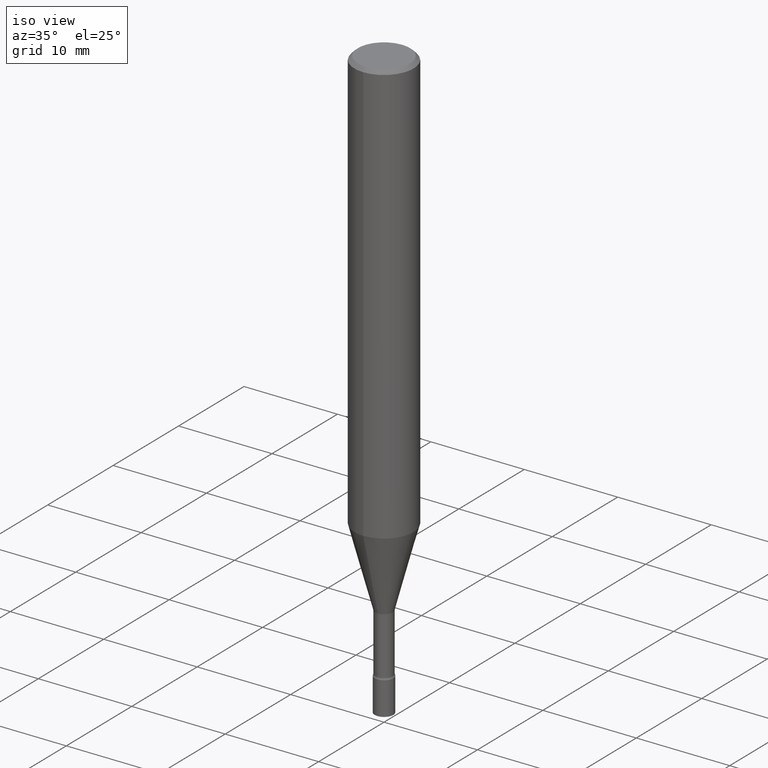
[diagram: clean part render]
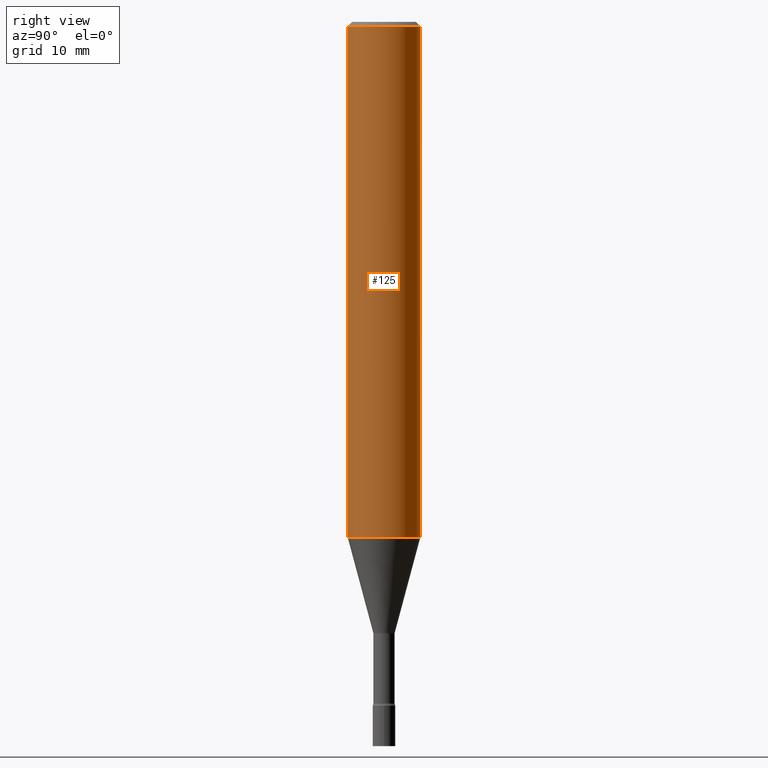
[diagram: tour spotlight — one face highlighted and labeled with its STEP entity id]
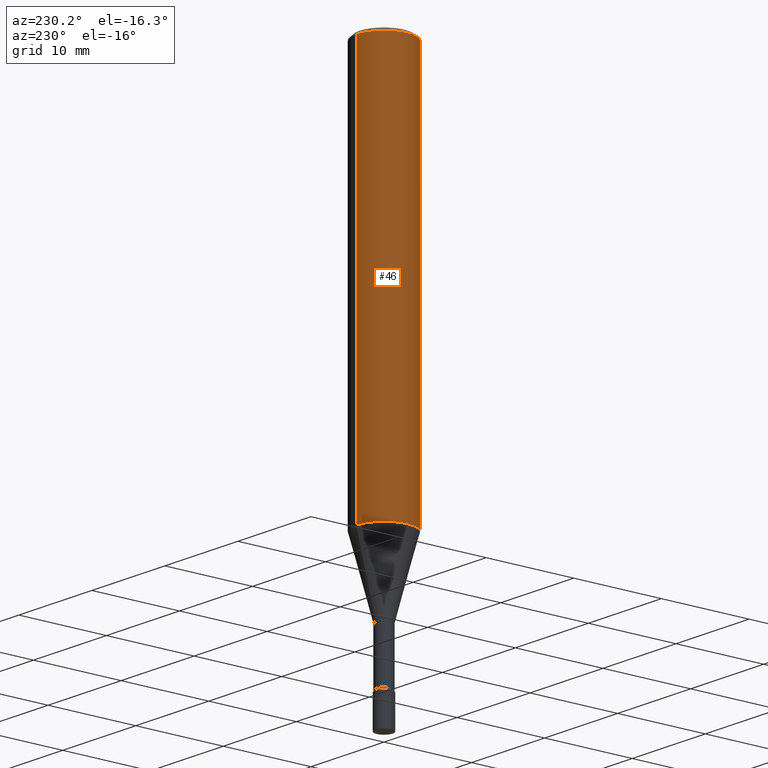
[diagram: tour spotlight — one face highlighted and labeled with its STEP entity id]
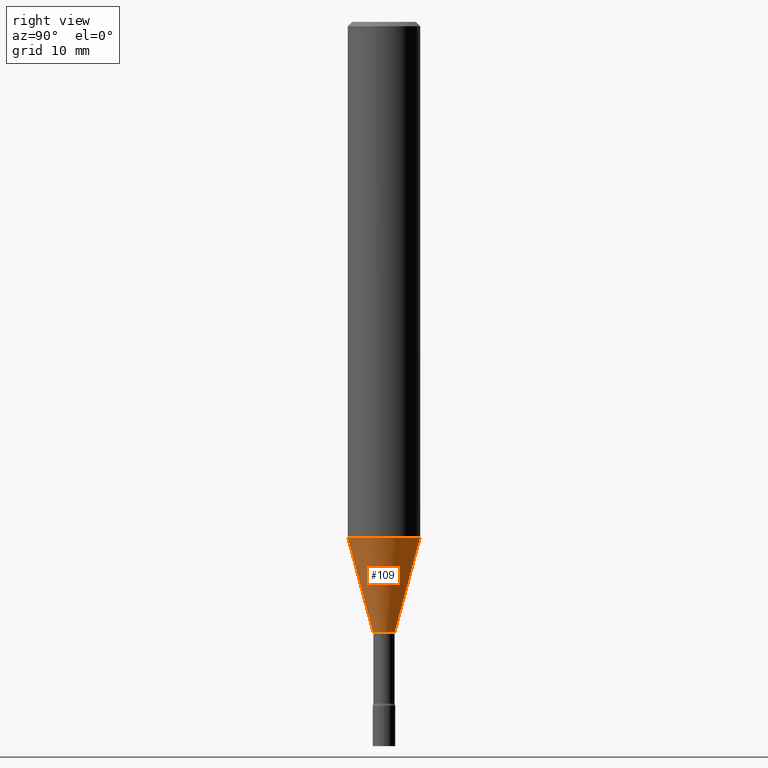
[diagram: tour spotlight — one face highlighted and labeled with its STEP entity id]
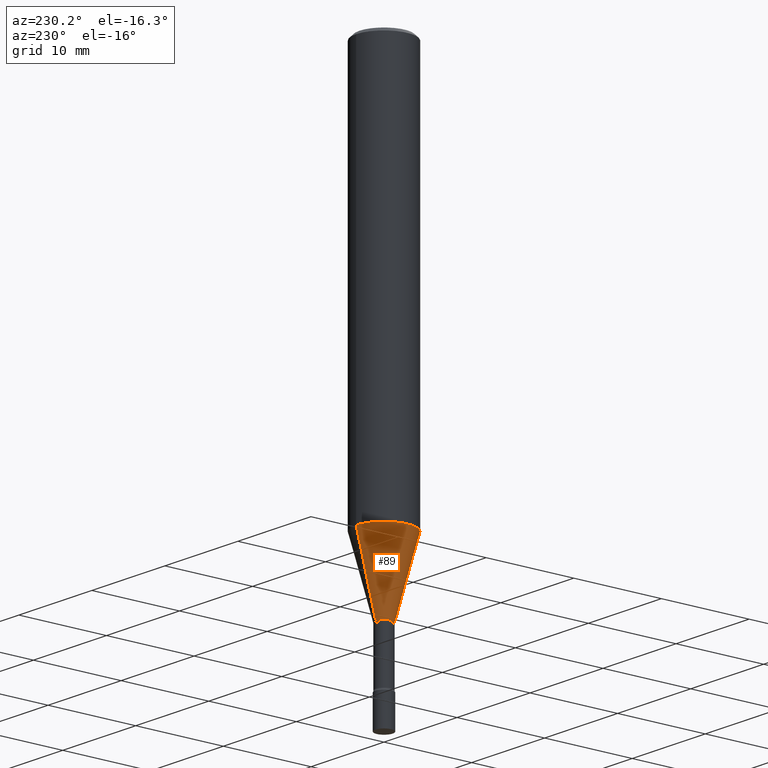
[diagram: tour spotlight — one face highlighted and labeled with its STEP entity id]
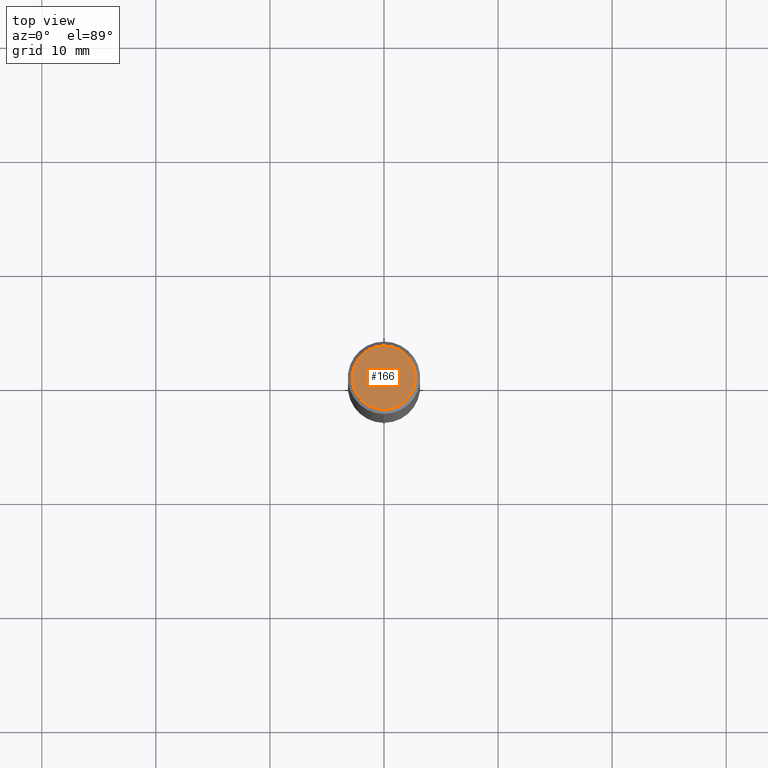
[diagram: tour spotlight — one face highlighted and labeled with its STEP entity id]
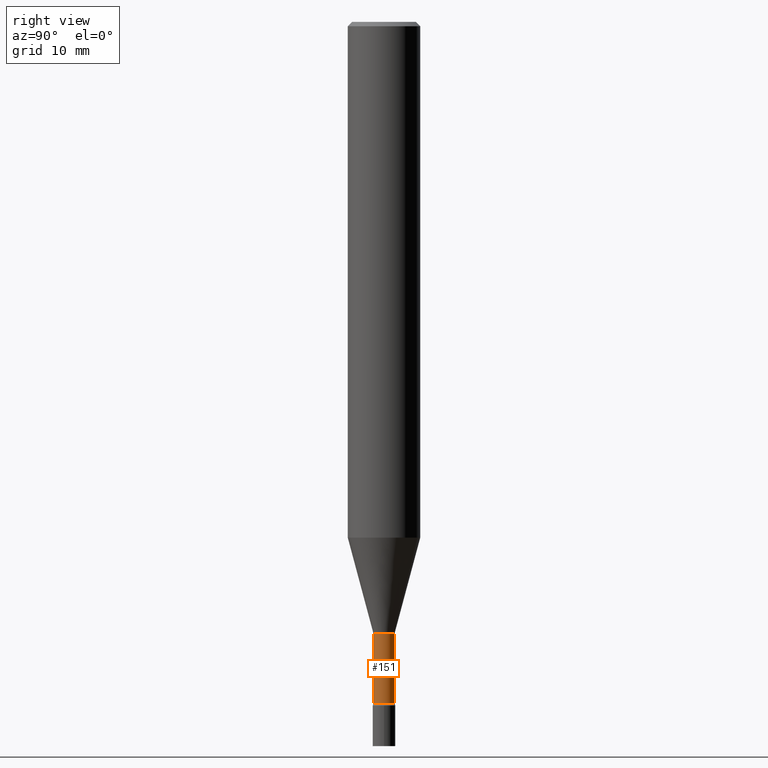
[diagram: tour spotlight — one face highlighted and labeled with its STEP entity id]
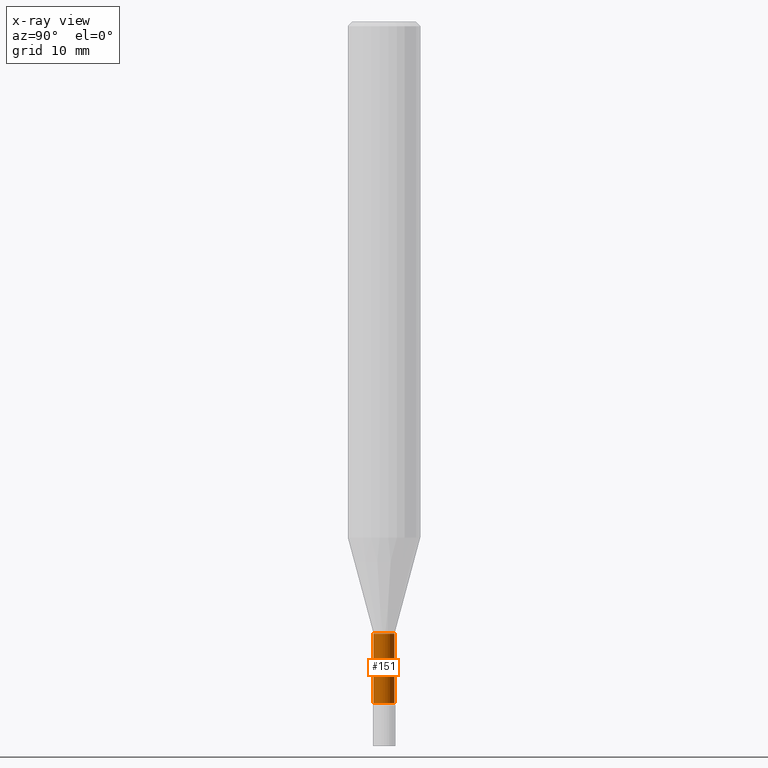
[diagram: x-ray of the same camera — body ghosted, this tour face saturated]
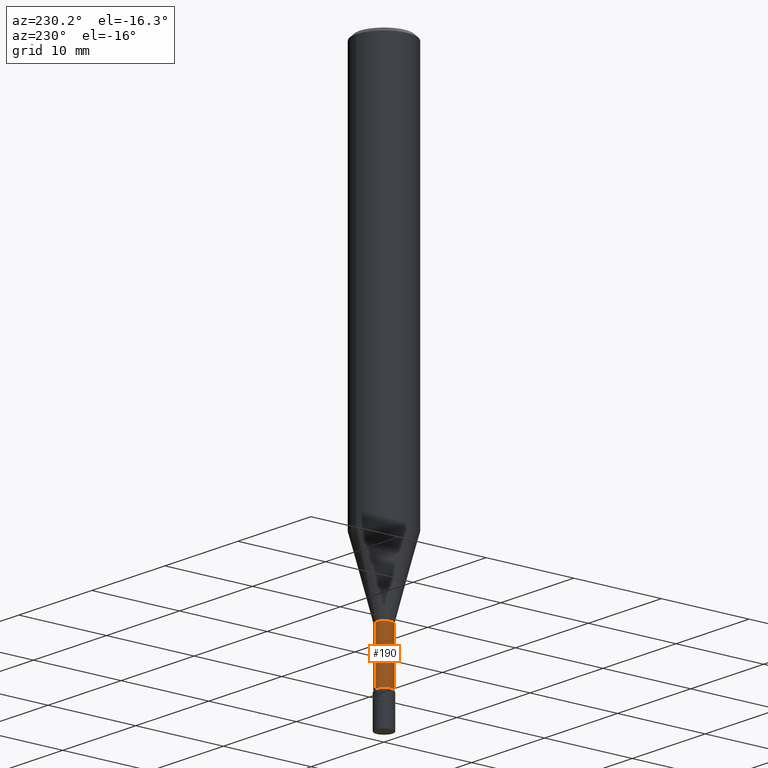
[diagram: tour spotlight — one face highlighted and labeled with its STEP entity id]
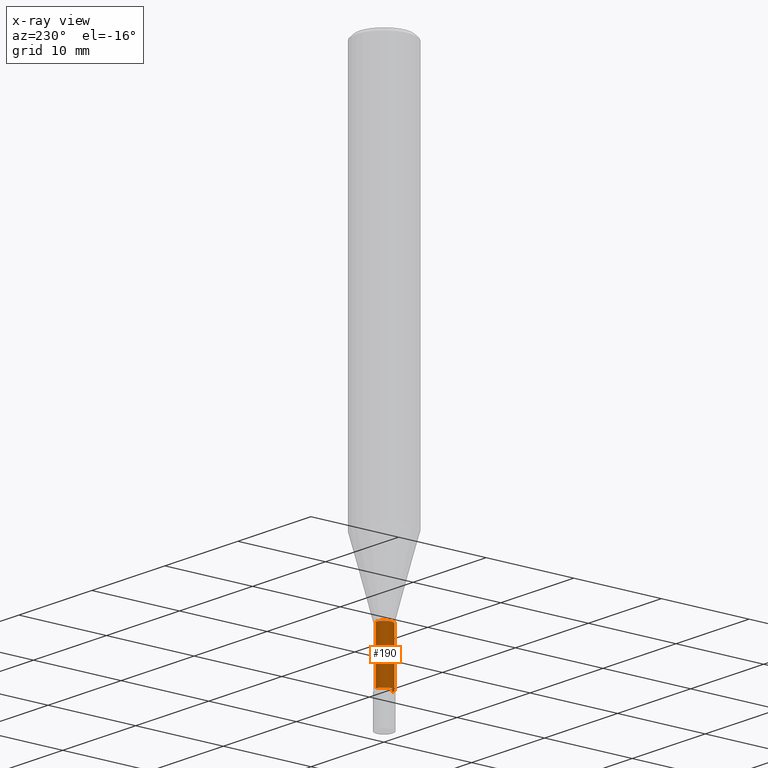
[diagram: x-ray of the same camera — body ghosted, this tour face saturated]
A machine part: a face-by-face anatomy tour. The part has 18 B-rep faces; the first image is the clean iso view, then the 7 largest visible faces are spotlighted one at a time (largest first), each with its STEP entity span.

Face 1 — right view, entity #125. In plain terms, the highlighted cylindrical surface (edge-blend (fillet) strip) has radius 3.175 mm, axis along (-0, 0, 1).
Definition (entity closure, byte-faithful):
#8 = AXIS2_PLACEMENT_3D ( 'NONE', #391, #24, #192 ) ;
#24 = DIRECTION ( 'NONE',  ( -2.445349781310831056E-29, 3.491651789237626205E-15, 1.000000000000000000 ) ) ;
#34 = CARTESIAN_POINT ( 'NONE',  ( 4.353847260578623732E-29, -6.216746043307386729E-15, -1.780459913691669227 ) ) ;
#61 = FACE_OUTER_BOUND ( 'NONE', #317, .T. ) ;
#100 = VERTEX_POINT ( 'NONE', #135 ) ;
#110 = LINE ( 'NONE', #480, #308 ) ;
#125 = ADVANCED_FACE ( 'NONE', ( #61 ), #433, .T. ) ;
#130 = AXIS2_PLACEMENT_3D ( 'NONE', #325, #194, #357 ) ;
#132 = VERTEX_POINT ( 'NONE', #353 ) ;
#135 = CARTESIAN_POINT ( 'NONE',  ( 8.881784197001688169E-16, 0.1249999999999999306, -0.01500000000000045047 ) ) ;
#145 = ORIENTED_EDGE ( 'NONE', *, *, #440, .F. ) ;
#152 = ORIENTED_EDGE ( 'NONE', *, *, #250, .F. ) ;
#165 = DIRECTION ( 'NONE',  ( -2.445349781310830776E-29, 3.491651789237625811E-15, 1.000000000000000000 ) ) ;
#181 = VERTEX_POINT ( 'NONE', #490 ) ;
#192 = DIRECTION ( 'NONE',  ( -6.982962677686265922E-15, -1.000000000000000000, 3.491651789237626205E-15 ) ) ;
#194 = DIRECTION ( 'NONE',  ( -2.445349781310831056E-29, 3.491651789237626205E-15, 1.000000000000000000 ) ) ;
#200 = DIRECTION ( 'NONE',  ( -6.982962677686265922E-15, -1.000000000000000000, 4.370956789862821150E-15 ) ) ;
#250 = EDGE_CURVE ( 'NONE', #324, #100, #252, .T. ) ;
#252 = CIRCLE ( 'NONE', #130, 0.1250000000000000000 ) ;
#268 = EDGE_CURVE ( 'NONE', #132, #100, #110, .T. ) ;
#280 = AXIS2_PLACEMENT_3D ( 'NONE', #34, #435, #200 ) ;
#308 = VECTOR ( 'NONE', #165, 39.37007874015748143 ) ;
#317 = EDGE_LOOP ( 'NONE', ( #499, #423, #152, #145 ) ) ;
#324 = VERTEX_POINT ( 'NONE', #367 ) ;
#325 = CARTESIAN_POINT ( 'NONE',  ( 3.668024671966249089E-31, -5.237477683856444140E-17, -0.01500000000000001332 ) ) ;
#334 = CARTESIAN_POINT ( 'NONE',  ( -8.728703347107832402E-16, -0.1250000000000000000, 4.364564736547032757E-16 ) ) ;
#353 = CARTESIAN_POINT ( 'NONE',  ( 8.881784197001682253E-16, 0.1249999999999937550, -1.780459913691669671 ) ) ;
#357 = DIRECTION ( 'NONE',  ( -6.982962677686265922E-15, -1.000000000000000000, 3.500180241882337261E-15 ) ) ;
#367 = CARTESIAN_POINT ( 'NONE',  ( -8.728703347107828458E-16, -0.1250000000000000555, -0.01499999999999957617 ) ) ;
#370 = LINE ( 'NONE', #334, #412 ) ;
#373 = EDGE_CURVE ( 'NONE', #181, #132, #458, .T. ) ;
#391 = CARTESIAN_POINT ( 'NONE',  ( 0.000000000000000000, 0.000000000000000000, 0.000000000000000000 ) ) ;
#412 = VECTOR ( 'NONE', #451, 39.37007874015748143 ) ;
#423 = ORIENTED_EDGE ( 'NONE', *, *, #268, .T. ) ;
#433 = CYLINDRICAL_SURFACE ( 'NONE', #8, 0.1250000000000000000 ) ;
#435 = DIRECTION ( 'NONE',  ( -2.445349781310831056E-29, 3.491651789237626205E-15, 1.000000000000000000 ) ) ;
#440 = EDGE_CURVE ( 'NONE', #181, #324, #370, .T. ) ;
#451 = DIRECTION ( 'NONE',  ( -2.445349781310830776E-29, 3.491651789237625811E-15, 1.000000000000000000 ) ) ;
#458 = CIRCLE ( 'NONE', #280, 0.1250000000000000000 ) ;
#480 = CARTESIAN_POINT ( 'NONE',  ( 8.881784197001251337E-16, 0.1250000000000000000, -4.364564736547032757E-16 ) ) ;
#490 = CARTESIAN_POINT ( 'NONE',  ( -8.728703347107397543E-16, -0.1250000000000062450, -1.780459913691668561 ) ) ;
#499 = ORIENTED_EDGE ( 'NONE', *, *, #373, .T. ) ;

Face 2 — auxiliary view, entity #46. In plain terms, the highlighted cylindrical surface (edge-blend (fillet) strip) has radius 3.175 mm, axis along (-0, 0, 1).
Definition (entity closure, byte-faithful):
#2 = ORIENTED_EDGE ( 'NONE', *, *, #440, .T. ) ;
#4 = CIRCLE ( 'NONE', #475, 0.1250000000000000000 ) ;
#7 = FACE_OUTER_BOUND ( 'NONE', #136, .T. ) ;
#46 = ADVANCED_FACE ( 'NONE', ( #7 ), #214, .T. ) ;
#100 = VERTEX_POINT ( 'NONE', #135 ) ;
#103 = DIRECTION ( 'NONE',  ( -6.982962677686265922E-15, -1.000000000000000000, 3.491651789237626205E-15 ) ) ;
#110 = LINE ( 'NONE', #480, #308 ) ;
#117 = DIRECTION ( 'NONE',  ( -6.982962677686265922E-15, -1.000000000000000000, 4.370956789862821150E-15 ) ) ;
#132 = VERTEX_POINT ( 'NONE', #353 ) ;
#135 = CARTESIAN_POINT ( 'NONE',  ( 8.881784197001688169E-16, 0.1249999999999999306, -0.01500000000000045047 ) ) ;
#136 = EDGE_LOOP ( 'NONE', ( #269, #176, #2, #302 ) ) ;
#154 = DIRECTION ( 'NONE',  ( -6.982962677686265922E-15, -1.000000000000000000, 3.500180241882337261E-15 ) ) ;
#164 = DIRECTION ( 'NONE',  ( -2.445349781310831056E-29, 3.491651789237626205E-15, 1.000000000000000000 ) ) ;
#165 = DIRECTION ( 'NONE',  ( -2.445349781310830776E-29, 3.491651789237625811E-15, 1.000000000000000000 ) ) ;
#176 = ORIENTED_EDGE ( 'NONE', *, *, #359, .T. ) ;
#181 = VERTEX_POINT ( 'NONE', #490 ) ;
#214 = CYLINDRICAL_SURFACE ( 'NONE', #243, 0.1250000000000000000 ) ;
#236 = DIRECTION ( 'NONE',  ( -2.445349781310831056E-29, 3.491651789237626205E-15, 1.000000000000000000 ) ) ;
#243 = AXIS2_PLACEMENT_3D ( 'NONE', #381, #341, #103 ) ;
#244 = CIRCLE ( 'NONE', #491, 0.1250000000000000000 ) ;
#258 = EDGE_CURVE ( 'NONE', #100, #324, #4, .T. ) ;
#268 = EDGE_CURVE ( 'NONE', #132, #100, #110, .T. ) ;
#269 = ORIENTED_EDGE ( 'NONE', *, *, #268, .F. ) ;
#302 = ORIENTED_EDGE ( 'NONE', *, *, #258, .F. ) ;
#308 = VECTOR ( 'NONE', #165, 39.37007874015748143 ) ;
#324 = VERTEX_POINT ( 'NONE', #367 ) ;
#334 = CARTESIAN_POINT ( 'NONE',  ( -8.728703347107832402E-16, -0.1250000000000000000, 4.364564736547032757E-16 ) ) ;
#341 = DIRECTION ( 'NONE',  ( -2.445349781310831056E-29, 3.491651789237626205E-15, 1.000000000000000000 ) ) ;
#353 = CARTESIAN_POINT ( 'NONE',  ( 8.881784197001682253E-16, 0.1249999999999937550, -1.780459913691669671 ) ) ;
#359 = EDGE_CURVE ( 'NONE', #132, #181, #244, .T. ) ;
#367 = CARTESIAN_POINT ( 'NONE',  ( -8.728703347107828458E-16, -0.1250000000000000555, -0.01499999999999957617 ) ) ;
#370 = LINE ( 'NONE', #334, #412 ) ;
#381 = CARTESIAN_POINT ( 'NONE',  ( 0.000000000000000000, 0.000000000000000000, 0.000000000000000000 ) ) ;
#407 = CARTESIAN_POINT ( 'NONE',  ( 4.353847260578623732E-29, -6.216746043307386729E-15, -1.780459913691669227 ) ) ;
#412 = VECTOR ( 'NONE', #451, 39.37007874015748143 ) ;
#440 = EDGE_CURVE ( 'NONE', #181, #324, #370, .T. ) ;
#451 = DIRECTION ( 'NONE',  ( -2.445349781310830776E-29, 3.491651789237625811E-15, 1.000000000000000000 ) ) ;
#475 = AXIS2_PLACEMENT_3D ( 'NONE', #512, #164, #154 ) ;
#480 = CARTESIAN_POINT ( 'NONE',  ( 8.881784197001251337E-16, 0.1250000000000000000, -4.364564736547032757E-16 ) ) ;
#490 = CARTESIAN_POINT ( 'NONE',  ( -8.728703347107397543E-16, -0.1250000000000062450, -1.780459913691668561 ) ) ;
#491 = AXIS2_PLACEMENT_3D ( 'NONE', #407, #236, #117 ) ;
#512 = CARTESIAN_POINT ( 'NONE',  ( 3.668024671966249089E-31, -5.237477683856444140E-17, -0.01500000000000001332 ) ) ;

Face 3 — right view, entity #109. In plain terms, the highlighted conical surface has half-angle 15 deg.
Definition (entity closure, byte-faithful):
#34 = CARTESIAN_POINT ( 'NONE',  ( 4.353847260578623732E-29, -6.216746043307386729E-15, -1.780459913691669227 ) ) ;
#42 = LINE ( 'NONE', #290, #318 ) ;
#60 = VECTOR ( 'NONE', #352, 39.37007874015748854 ) ;
#62 = DIRECTION ( 'NONE',  ( -6.982962677686265922E-15, -1.000000000000000000, 0.000000000000000000 ) ) ;
#64 = LINE ( 'NONE', #483, #60 ) ;
#75 = AXIS2_PLACEMENT_3D ( 'NONE', #429, #314, #62 ) ;
#88 = CARTESIAN_POINT ( 'NONE',  ( 5.155023538228511633E-29, -7.360724955743956693E-15, -2.108092501787273143 ) ) ;
#92 = VERTEX_POINT ( 'NONE', #267 ) ;
#108 = ORIENTED_EDGE ( 'NONE', *, *, #246, .F. ) ;
#109 = ADVANCED_FACE ( 'NONE', ( #449 ), #234, .T. ) ;
#132 = VERTEX_POINT ( 'NONE', #353 ) ;
#171 = VERTEX_POINT ( 'NONE', #478 ) ;
#181 = VERTEX_POINT ( 'NONE', #490 ) ;
#184 = CIRCLE ( 'NONE', #75, 0.03721111260566398182 ) ;
#200 = DIRECTION ( 'NONE',  ( -6.982962677686265922E-15, -1.000000000000000000, 4.370956789862821150E-15 ) ) ;
#202 = EDGE_CURVE ( 'NONE', #92, #171, #184, .T. ) ;
#232 = DIRECTION ( 'NONE',  ( -6.982962677686265922E-15, -1.000000000000000000, 0.000000000000000000 ) ) ;
#234 = CONICAL_SURFACE ( 'NONE', #371, 0.03721111260566398182, 0.2617993877991500740 ) ;
#246 = EDGE_CURVE ( 'NONE', #92, #181, #64, .T. ) ;
#255 = DIRECTION ( 'NONE',  ( -2.445349781310831056E-29, 3.491651789237626205E-15, 1.000000000000000000 ) ) ;
#267 = CARTESIAN_POINT ( 'NONE',  ( -2.598438105204809611E-16, -0.03721111260567134399, -2.108092501787273143 ) ) ;
#280 = AXIS2_PLACEMENT_3D ( 'NONE', #34, #435, #200 ) ;
#290 = CARTESIAN_POINT ( 'NONE',  ( 2.644008575151078799E-16, 0.03721111260565662660, -2.108092501787273143 ) ) ;
#298 = ORIENTED_EDGE ( 'NONE', *, *, #373, .F. ) ;
#314 = DIRECTION ( 'NONE',  ( -2.445349781310831056E-29, 3.491651789237626205E-15, 1.000000000000000000 ) ) ;
#318 = VECTOR ( 'NONE', #444, 39.37007874015748854 ) ;
#351 = ORIENTED_EDGE ( 'NONE', *, *, #202, .T. ) ;
#352 = DIRECTION ( 'NONE',  ( -1.807323732225328562E-15, -0.2588190451025179639, 0.9659258262890690894 ) ) ;
#353 = CARTESIAN_POINT ( 'NONE',  ( 8.881784197001682253E-16, 0.1249999999999937550, -1.780459913691669671 ) ) ;
#371 = AXIS2_PLACEMENT_3D ( 'NONE', #88, #255, #232 ) ;
#373 = EDGE_CURVE ( 'NONE', #181, #132, #458, .T. ) ;
#429 = CARTESIAN_POINT ( 'NONE',  ( 5.155023538228511633E-29, -7.360724955743956693E-15, -2.108092501787273143 ) ) ;
#435 = DIRECTION ( 'NONE',  ( -2.445349781310831056E-29, 3.491651789237626205E-15, 1.000000000000000000 ) ) ;
#444 = DIRECTION ( 'NONE',  ( 1.839019923739598738E-15, 0.2588190451025247363, 0.9659258262890673130 ) ) ;
#449 = FACE_OUTER_BOUND ( 'NONE', #452, .T. ) ;
#452 = EDGE_LOOP ( 'NONE', ( #351, #493, #298, #108 ) ) ;
#458 = CIRCLE ( 'NONE', #280, 0.1250000000000000000 ) ;
#478 = CARTESIAN_POINT ( 'NONE',  ( 5.762896386076385210E-16, 0.03721111260565662660, -2.108092501787273143 ) ) ;
#483 = CARTESIAN_POINT ( 'NONE',  ( -2.598438105204809611E-16, -0.03721111260567134399, -2.108092501787273143 ) ) ;
#490 = CARTESIAN_POINT ( 'NONE',  ( -8.728703347107397543E-16, -0.1250000000000062450, -1.780459913691668561 ) ) ;
#493 = ORIENTED_EDGE ( 'NONE', *, *, #520, .T. ) ;
#520 = EDGE_CURVE ( 'NONE', #171, #132, #42, .T. ) ;

Face 4 — auxiliary view, entity #89. In plain terms, the highlighted conical surface has half-angle 15 deg.
Definition (entity closure, byte-faithful):
#18 = EDGE_CURVE ( 'NONE', #171, #92, #329, .T. ) ;
#19 = CONICAL_SURFACE ( 'NONE', #49, 0.03721111260566398182, 0.2617993877991500740 ) ;
#31 = EDGE_LOOP ( 'NONE', ( #378, #494, #344, #119 ) ) ;
#42 = LINE ( 'NONE', #290, #318 ) ;
#48 = DIRECTION ( 'NONE',  ( -2.445349781310831056E-29, 3.491651789237626205E-15, 1.000000000000000000 ) ) ;
#49 = AXIS2_PLACEMENT_3D ( 'NONE', #496, #48, #502 ) ;
#60 = VECTOR ( 'NONE', #352, 39.37007874015748854 ) ;
#64 = LINE ( 'NONE', #483, #60 ) ;
#89 = ADVANCED_FACE ( 'NONE', ( #384 ), #19, .T. ) ;
#92 = VERTEX_POINT ( 'NONE', #267 ) ;
#117 = DIRECTION ( 'NONE',  ( -6.982962677686265922E-15, -1.000000000000000000, 4.370956789862821150E-15 ) ) ;
#119 = ORIENTED_EDGE ( 'NONE', *, *, #359, .F. ) ;
#124 = DIRECTION ( 'NONE',  ( -6.982962677686265922E-15, -1.000000000000000000, 0.000000000000000000 ) ) ;
#132 = VERTEX_POINT ( 'NONE', #353 ) ;
#141 = AXIS2_PLACEMENT_3D ( 'NONE', #511, #294, #124 ) ;
#171 = VERTEX_POINT ( 'NONE', #478 ) ;
#181 = VERTEX_POINT ( 'NONE', #490 ) ;
#236 = DIRECTION ( 'NONE',  ( -2.445349781310831056E-29, 3.491651789237626205E-15, 1.000000000000000000 ) ) ;
#244 = CIRCLE ( 'NONE', #491, 0.1250000000000000000 ) ;
#246 = EDGE_CURVE ( 'NONE', #92, #181, #64, .T. ) ;
#267 = CARTESIAN_POINT ( 'NONE',  ( -2.598438105204809611E-16, -0.03721111260567134399, -2.108092501787273143 ) ) ;
#290 = CARTESIAN_POINT ( 'NONE',  ( 2.644008575151078799E-16, 0.03721111260565662660, -2.108092501787273143 ) ) ;
#294 = DIRECTION ( 'NONE',  ( -2.445349781310831056E-29, 3.491651789237626205E-15, 1.000000000000000000 ) ) ;
#318 = VECTOR ( 'NONE', #444, 39.37007874015748854 ) ;
#329 = CIRCLE ( 'NONE', #141, 0.03721111260566398182 ) ;
#344 = ORIENTED_EDGE ( 'NONE', *, *, #246, .T. ) ;
#352 = DIRECTION ( 'NONE',  ( -1.807323732225328562E-15, -0.2588190451025179639, 0.9659258262890690894 ) ) ;
#353 = CARTESIAN_POINT ( 'NONE',  ( 8.881784197001682253E-16, 0.1249999999999937550, -1.780459913691669671 ) ) ;
#359 = EDGE_CURVE ( 'NONE', #132, #181, #244, .T. ) ;
#378 = ORIENTED_EDGE ( 'NONE', *, *, #520, .F. ) ;
#384 = FACE_OUTER_BOUND ( 'NONE', #31, .T. ) ;
#407 = CARTESIAN_POINT ( 'NONE',  ( 4.353847260578623732E-29, -6.216746043307386729E-15, -1.780459913691669227 ) ) ;
#444 = DIRECTION ( 'NONE',  ( 1.839019923739598738E-15, 0.2588190451025247363, 0.9659258262890673130 ) ) ;
#478 = CARTESIAN_POINT ( 'NONE',  ( 5.762896386076385210E-16, 0.03721111260565662660, -2.108092501787273143 ) ) ;
#483 = CARTESIAN_POINT ( 'NONE',  ( -2.598438105204809611E-16, -0.03721111260567134399, -2.108092501787273143 ) ) ;
#490 = CARTESIAN_POINT ( 'NONE',  ( -8.728703347107397543E-16, -0.1250000000000062450, -1.780459913691668561 ) ) ;
#491 = AXIS2_PLACEMENT_3D ( 'NONE', #407, #236, #117 ) ;
#494 = ORIENTED_EDGE ( 'NONE', *, *, #18, .T. ) ;
#496 = CARTESIAN_POINT ( 'NONE',  ( 5.155023538228511633E-29, -7.360724955743956693E-15, -2.108092501787273143 ) ) ;
#502 = DIRECTION ( 'NONE',  ( -6.982962677686265922E-15, -1.000000000000000000, 0.000000000000000000 ) ) ;
#511 = CARTESIAN_POINT ( 'NONE',  ( 5.155023538228511633E-29, -7.360724955743956693E-15, -2.108092501787273143 ) ) ;
#520 = EDGE_CURVE ( 'NONE', #171, #132, #42, .T. ) ;

Face 5 — top view, entity #166. In plain terms, the highlighted planar face has unit normal (0, -0, -1).
Definition (entity closure, byte-faithful):
#1 = CARTESIAN_POINT ( 'NONE',  ( -8.061085147381547495E-16, -0.1100000000000000283, 3.706293315689109657E-16 ) ) ;
#27 = DIRECTION ( 'NONE',  ( -6.982962677686265922E-15, -1.000000000000000000, 3.491651789237625811E-15 ) ) ;
#44 = DIRECTION ( 'NONE',  ( -2.445349781310831056E-29, 3.491651789237626205E-15, 1.000000000000000000 ) ) ;
#80 = PLANE ( 'NONE',  #279 ) ;
#166 = ADVANCED_FACE ( 'NONE', ( #198 ), #80, .F. ) ;
#185 = VERTEX_POINT ( 'NONE', #199 ) ;
#197 = EDGE_LOOP ( 'NONE', ( #388, #355 ) ) ;
#198 = FACE_OUTER_BOUND ( 'NONE', #197, .T. ) ;
#199 = CARTESIAN_POINT ( 'NONE',  ( 8.204981146281365554E-16, 0.1100000000000000283, -3.975340620633669494E-16 ) ) ;
#235 = AXIS2_PLACEMENT_3D ( 'NONE', #432, #319, #27 ) ;
#242 = EDGE_CURVE ( 'NONE', #185, #421, #320, .T. ) ;
#249 = CARTESIAN_POINT ( 'NONE',  ( 3.289573841542240327E-46, -4.697097518496170610E-32, -1.345236524722799803E-17 ) ) ;
#271 = CARTESIAN_POINT ( 'NONE',  ( 7.681258945454894762E-16, 0.1100000000000000283, -3.908078794397529781E-16 ) ) ;
#279 = AXIS2_PLACEMENT_3D ( 'NONE', #271, #390, #488 ) ;
#299 = DIRECTION ( 'NONE',  ( -6.982962677686265922E-15, -1.000000000000000000, 3.491651789237625811E-15 ) ) ;
#319 = DIRECTION ( 'NONE',  ( -2.445349781310831056E-29, 3.491651789237626205E-15, 1.000000000000000000 ) ) ;
#320 = CIRCLE ( 'NONE', #235, 0.1100000000000000283 ) ;
#336 = AXIS2_PLACEMENT_3D ( 'NONE', #249, #44, #299 ) ;
#355 = ORIENTED_EDGE ( 'NONE', *, *, #472, .T. ) ;
#388 = ORIENTED_EDGE ( 'NONE', *, *, #242, .T. ) ;
#390 = DIRECTION ( 'NONE',  ( 2.445349781310831056E-29, -3.491651789237625811E-15, -1.000000000000000000 ) ) ;
#421 = VERTEX_POINT ( 'NONE', #1 ) ;
#432 = CARTESIAN_POINT ( 'NONE',  ( 3.289573841542240327E-46, -4.697097518496170610E-32, -1.345236524722799803E-17 ) ) ;
#439 = CIRCLE ( 'NONE', #336, 0.1100000000000000283 ) ;
#472 = EDGE_CURVE ( 'NONE', #421, #185, #439, .T. ) ;
#488 = DIRECTION ( 'NONE',  ( 6.982962677686265922E-15, 1.000000000000000000, -3.491651789237625811E-15 ) ) ;

Face 6 — right view, entity #151. An x-ray twin of the same camera follows (body ghosted, this face saturated) — the face is partly hidden behind the body. In plain terms, the highlighted cylindrical surface (edge-blend (fillet) strip) has radius 0.9322 mm, axis along (-0, 0, 1).
Definition (entity closure, byte-faithful):
#14 = DIRECTION ( 'NONE',  ( -2.445349781310830776E-29, 3.491651789237625811E-15, 1.000000000000000000 ) ) ;
#22 = CARTESIAN_POINT ( 'NONE',  ( 2.691180611691956727E-16, 0.03669999999999181556, -2.351939137763241483 ) ) ;
#25 = ORIENTED_EDGE ( 'NONE', *, *, #47, .F. ) ;
#47 = EDGE_CURVE ( 'NONE', #358, #518, #460, .T. ) ;
#70 = CARTESIAN_POINT ( 'NONE',  ( 0.000000000000000000, 0.000000000000000000, 0.000000000000000000 ) ) ;
#95 = VERTEX_POINT ( 'NONE', #22 ) ;
#102 = EDGE_CURVE ( 'NONE', #358, #95, #286, .T. ) ;
#112 = CYLINDRICAL_SURFACE ( 'NONE', #404, 0.03670000000000001733 ) ;
#147 = DIRECTION ( 'NONE',  ( -6.982962677686265133E-15, -1.000000000000000000, 0.000000000000000000 ) ) ;
#151 = ADVANCED_FACE ( 'NONE', ( #471 ), #112, .T. ) ;
#163 = CARTESIAN_POINT ( 'NONE',  ( 5.164517084658619251E-29, -7.374280545472771728E-15, -2.111974787463811065 ) ) ;
#173 = VECTOR ( 'NONE', #393, 39.37007874015748143 ) ;
#195 = VECTOR ( 'NONE', #14, 39.37007874015748143 ) ;
#209 = EDGE_CURVE ( 'NONE', #95, #395, #409, .T. ) ;
#223 = CARTESIAN_POINT ( 'NONE',  ( -2.562747302710860916E-16, -0.03670000000000001733, 1.281436206650209465E-16 ) ) ;
#237 = DIRECTION ( 'NONE',  ( -2.445349781310831056E-29, 3.491651789237626205E-15, 1.000000000000000000 ) ) ;
#251 = CARTESIAN_POINT ( 'NONE',  ( -2.562747302710343719E-16, -0.03670000000000737950, -2.111974787463811065 ) ) ;
#274 = EDGE_LOOP ( 'NONE', ( #462, #503, #461, #25 ) ) ;
#286 = CIRCLE ( 'NONE', #456, 0.03670000000000003121 ) ;
#300 = DIRECTION ( 'NONE',  ( -2.445349781310831056E-29, 3.491651789237626205E-15, 1.000000000000000000 ) ) ;
#323 = CARTESIAN_POINT ( 'NONE',  ( 2.607691840240143303E-16, 0.03669999999999262741, -2.111974787463811065 ) ) ;
#354 = EDGE_CURVE ( 'NONE', #518, #395, #484, .T. ) ;
#358 = VERTEX_POINT ( 'NONE', #403 ) ;
#393 = DIRECTION ( 'NONE',  ( -2.445349781310830776E-29, 3.491651789237625811E-15, 1.000000000000000000 ) ) ;
#395 = VERTEX_POINT ( 'NONE', #323 ) ;
#399 = DIRECTION ( 'NONE',  ( -6.982962677686265922E-15, -1.000000000000000000, 3.491651789237626205E-15 ) ) ;
#403 = CARTESIAN_POINT ( 'NONE',  ( -2.562747302710286527E-16, -0.03670000000000824686, -2.351939137763241483 ) ) ;
#404 = AXIS2_PLACEMENT_3D ( 'NONE', #70, #237, #399 ) ;
#409 = LINE ( 'NONE', #469, #173 ) ;
#456 = AXIS2_PLACEMENT_3D ( 'NONE', #506, #300, #147 ) ;
#460 = LINE ( 'NONE', #223, #195 ) ;
#461 = ORIENTED_EDGE ( 'NONE', *, *, #354, .F. ) ;
#462 = ORIENTED_EDGE ( 'NONE', *, *, #102, .T. ) ;
#467 = AXIS2_PLACEMENT_3D ( 'NONE', #163, #482, #479 ) ;
#469 = CARTESIAN_POINT ( 'NONE',  ( 2.607691840239568914E-16, 0.03670000000000001733, -1.281436206650209465E-16 ) ) ;
#471 = FACE_OUTER_BOUND ( 'NONE', #274, .T. ) ;
#479 = DIRECTION ( 'NONE',  ( -6.982962677686265922E-15, -1.000000000000000000, 0.000000000000000000 ) ) ;
#482 = DIRECTION ( 'NONE',  ( -2.445349781310831056E-29, 3.491651789237626205E-15, 1.000000000000000000 ) ) ;
#484 = CIRCLE ( 'NONE', #467, 0.03670000000000000345 ) ;
#503 = ORIENTED_EDGE ( 'NONE', *, *, #209, .T. ) ;
#506 = CARTESIAN_POINT ( 'NONE',  ( 5.751313856185726138E-29, -8.212152498549022381E-15, -2.351939137763241483 ) ) ;
#518 = VERTEX_POINT ( 'NONE', #251 ) ;

Face 7 — auxiliary view, entity #190. An x-ray twin of the same camera follows (body ghosted, this face saturated) — the face is partly hidden behind the body. In plain terms, the highlighted cylindrical surface (edge-blend (fillet) strip) has radius 0.9322 mm, axis along (-0, 0, 1).
Definition (entity closure, byte-faithful):
#14 = DIRECTION ( 'NONE',  ( -2.445349781310830776E-29, 3.491651789237625811E-15, 1.000000000000000000 ) ) ;
#22 = CARTESIAN_POINT ( 'NONE',  ( 2.691180611691956727E-16, 0.03669999999999181556, -2.351939137763241483 ) ) ;
#33 = DIRECTION ( 'NONE',  ( -2.445349781310831056E-29, 3.491651789237626205E-15, 1.000000000000000000 ) ) ;
#39 = DIRECTION ( 'NONE',  ( -6.982962677686265922E-15, -1.000000000000000000, 0.000000000000000000 ) ) ;
#47 = EDGE_CURVE ( 'NONE', #358, #518, #460, .T. ) ;
#73 = DIRECTION ( 'NONE',  ( -2.445349781310831056E-29, 3.491651789237626205E-15, 1.000000000000000000 ) ) ;
#81 = CYLINDRICAL_SURFACE ( 'NONE', #217, 0.03670000000000001733 ) ;
#90 = CARTESIAN_POINT ( 'NONE',  ( 5.751313856185726138E-29, -8.212152498549022381E-15, -2.351939137763241483 ) ) ;
#95 = VERTEX_POINT ( 'NONE', #22 ) ;
#133 = CARTESIAN_POINT ( 'NONE',  ( 0.000000000000000000, 0.000000000000000000, 0.000000000000000000 ) ) ;
#134 = DIRECTION ( 'NONE',  ( -2.445349781310831056E-29, 3.491651789237626205E-15, 1.000000000000000000 ) ) ;
#161 = ORIENTED_EDGE ( 'NONE', *, *, #209, .F. ) ;
#168 = AXIS2_PLACEMENT_3D ( 'NONE', #245, #73, #39 ) ;
#173 = VECTOR ( 'NONE', #393, 39.37007874015748143 ) ;
#186 = CIRCLE ( 'NONE', #168, 0.03670000000000000345 ) ;
#190 = ADVANCED_FACE ( 'NONE', ( #295 ), #81, .T. ) ;
#195 = VECTOR ( 'NONE', #14, 39.37007874015748143 ) ;
#209 = EDGE_CURVE ( 'NONE', #95, #395, #409, .T. ) ;
#217 = AXIS2_PLACEMENT_3D ( 'NONE', #133, #33, #360 ) ;
#218 = AXIS2_PLACEMENT_3D ( 'NONE', #90, #134, #411 ) ;
#223 = CARTESIAN_POINT ( 'NONE',  ( -2.562747302710860916E-16, -0.03670000000000001733, 1.281436206650209465E-16 ) ) ;
#227 = EDGE_LOOP ( 'NONE', ( #161, #450, #508, #339 ) ) ;
#245 = CARTESIAN_POINT ( 'NONE',  ( 5.164517084658619251E-29, -7.374280545472771728E-15, -2.111974787463811065 ) ) ;
#251 = CARTESIAN_POINT ( 'NONE',  ( -2.562747302710343719E-16, -0.03670000000000737950, -2.111974787463811065 ) ) ;
#295 = FACE_OUTER_BOUND ( 'NONE', #227, .T. ) ;
#323 = CARTESIAN_POINT ( 'NONE',  ( 2.607691840240143303E-16, 0.03669999999999262741, -2.111974787463811065 ) ) ;
#339 = ORIENTED_EDGE ( 'NONE', *, *, #414, .F. ) ;
#358 = VERTEX_POINT ( 'NONE', #403 ) ;
#360 = DIRECTION ( 'NONE',  ( -6.982962677686265922E-15, -1.000000000000000000, 3.491651789237626205E-15 ) ) ;
#393 = DIRECTION ( 'NONE',  ( -2.445349781310830776E-29, 3.491651789237625811E-15, 1.000000000000000000 ) ) ;
#395 = VERTEX_POINT ( 'NONE', #323 ) ;
#403 = CARTESIAN_POINT ( 'NONE',  ( -2.562747302710286527E-16, -0.03670000000000824686, -2.351939137763241483 ) ) ;
#409 = LINE ( 'NONE', #469, #173 ) ;
#411 = DIRECTION ( 'NONE',  ( -6.982962677686265133E-15, -1.000000000000000000, 0.000000000000000000 ) ) ;
#414 = EDGE_CURVE ( 'NONE', #395, #518, #186, .T. ) ;
#434 = CIRCLE ( 'NONE', #218, 0.03670000000000003121 ) ;
#450 = ORIENTED_EDGE ( 'NONE', *, *, #514, .T. ) ;
#460 = LINE ( 'NONE', #223, #195 ) ;
#469 = CARTESIAN_POINT ( 'NONE',  ( 2.607691840239568914E-16, 0.03670000000000001733, -1.281436206650209465E-16 ) ) ;
#508 = ORIENTED_EDGE ( 'NONE', *, *, #47, .T. ) ;
#514 = EDGE_CURVE ( 'NONE', #95, #358, #434, .T. ) ;
#518 = VERTEX_POINT ( 'NONE', #251 ) ;